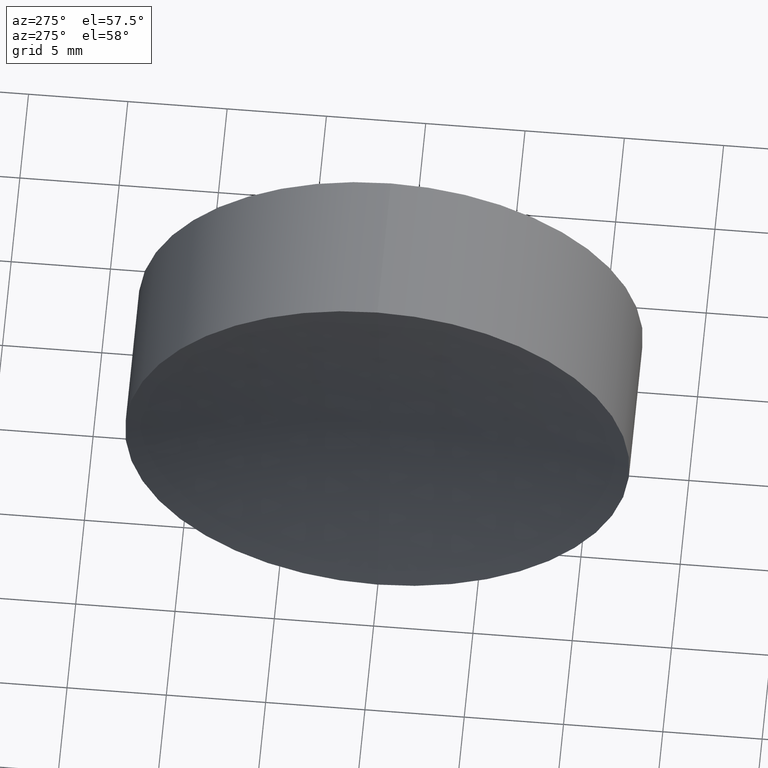
[diagram: clean part render]
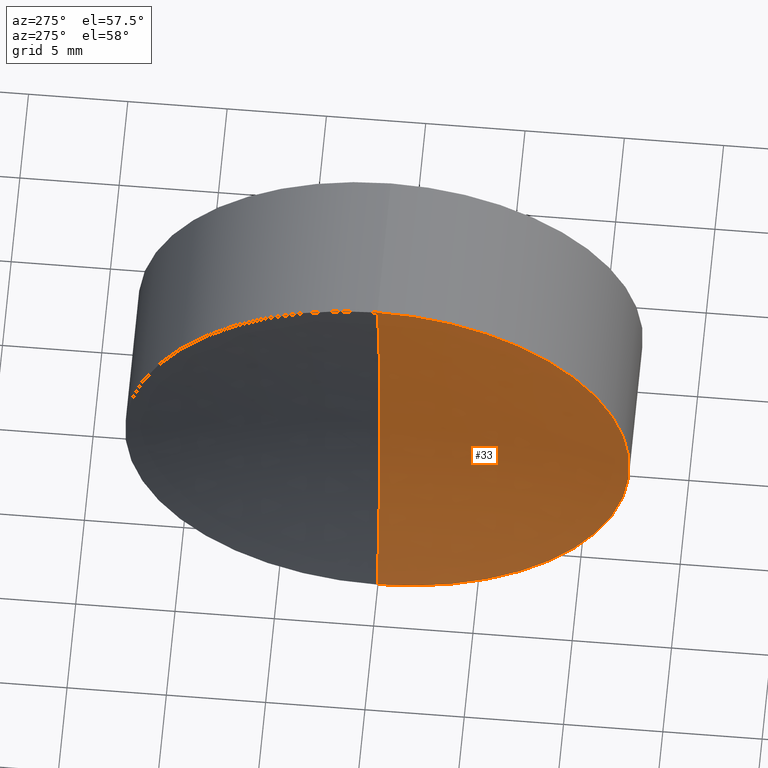
[diagram: same view with one face highlighted and labeled with its STEP entity id]
A machine part, auxiliary view. The second image highlights one B-rep face of the part: STEP entity #33.
In plain terms, the highlighted spherical surface has radius 52 mm.
Its self-contained STEP definition (entity closure, byte-faithful):
#6 = FACE_OUTER_BOUND ( 'NONE', #227, .T. ) ;
#10 = AXIS2_PLACEMENT_3D ( 'NONE', #256, #120, #20 ) ;
#20 = DIRECTION ( 'NONE',  ( 0.0000000000000000000, 0.0000000000000000000, 1.000000000000000000 ) ) ;
#27 = AXIS2_PLACEMENT_3D ( 'NONE', #171, #192, #144 ) ;
#33 = ADVANCED_FACE ( 'NONE', ( #6 ), #153, .F. ) ;
#38 = EDGE_CURVE ( 'NONE', #113, #276, #315, .T. ) ;
#43 = DIRECTION ( 'NONE',  ( 0.0000000000000000000, 0.0000000000000000000, -1.000000000000000000 ) ) ;
#67 = VERTEX_POINT ( 'NONE', #244 ) ;
#68 = DIRECTION ( 'NONE',  ( -1.000000000000000000, -0.0000000000000000000, 1.836970198721029900E-016 ) ) ;
#77 = DIRECTION ( 'NONE',  ( 0.0000000000000000000, 0.0000000000000000000, 1.000000000000000000 ) ) ;
#93 = CARTESIAN_POINT ( 'NONE',  ( 252.1199418144257200, 0.0000000000000000000, 12.69999999999998900 ) ) ;
#97 = CARTESIAN_POINT ( 'NONE',  ( 253.6946505410974200, 0.0000000000000000000, -6.368163305871125600E-015 ) ) ;
#113 = VERTEX_POINT ( 'NONE', #97 ) ;
#120 = DIRECTION ( 'NONE',  ( -0.0000000000000000000, 1.000000000000000000, 0.0000000000000000000 ) ) ;
#125 = AXIS2_PLACEMENT_3D ( 'NONE', #311, #68, #77 ) ;
#144 = DIRECTION ( 'NONE',  ( 0.0000000000000000000, -1.224646799147353000E-016, 1.000000000000000000 ) ) ;
#146 = ORIENTED_EDGE ( 'NONE', *, *, #293, .T. ) ;
#153 = SPHERICAL_SURFACE ( 'NONE', #10, 52.00000000000003600 ) ;
#171 = CARTESIAN_POINT ( 'NONE',  ( 201.6946505410973600, 0.0000000000000000000, 4.969511586685587000E-023 ) ) ;
#172 = AXIS2_PLACEMENT_3D ( 'NONE', #195, #214, #43 ) ;
#173 = CIRCLE ( 'NONE', #125, 12.70000000000004500 ) ;
#176 = ORIENTED_EDGE ( 'NONE', *, *, #327, .T. ) ;
#183 = ORIENTED_EDGE ( 'NONE', *, *, #38, .F. ) ;
#192 = DIRECTION ( 'NONE',  ( 2.249639673992786700E-032, 1.000000000000000000, 1.224646799147353200E-016 ) ) ;
#195 = CARTESIAN_POINT ( 'NONE',  ( 201.6946505410973600, 0.0000000000000000000, 4.969511586685587000E-023 ) ) ;
#214 = DIRECTION ( 'NONE',  ( 0.0000000000000000000, -1.000000000000000000, 0.0000000000000000000 ) ) ;
#227 = EDGE_LOOP ( 'NONE', ( #183, #176, #146 ) ) ;
#244 = CARTESIAN_POINT ( 'NONE',  ( 252.1199418144257200, 1.555301434917142800E-015, -12.70000000000004500 ) ) ;
#256 = CARTESIAN_POINT ( 'NONE',  ( 201.6946505410973600, 0.0000000000000000000, 4.969511586685587000E-023 ) ) ;
#276 = VERTEX_POINT ( 'NONE', #93 ) ;
#293 = EDGE_CURVE ( 'NONE', #67, #276, #173, .T. ) ;
#298 = CIRCLE ( 'NONE', #27, 52.00000000000003600 ) ;
#311 = CARTESIAN_POINT ( 'NONE',  ( 252.1199418144257200, 0.0000000000000000000, -4.646359015143001300E-014 ) ) ;
#315 = CIRCLE ( 'NONE', #172, 52.00000000000003600 ) ;
#327 = EDGE_CURVE ( 'NONE', #113, #67, #298, .T. ) ;